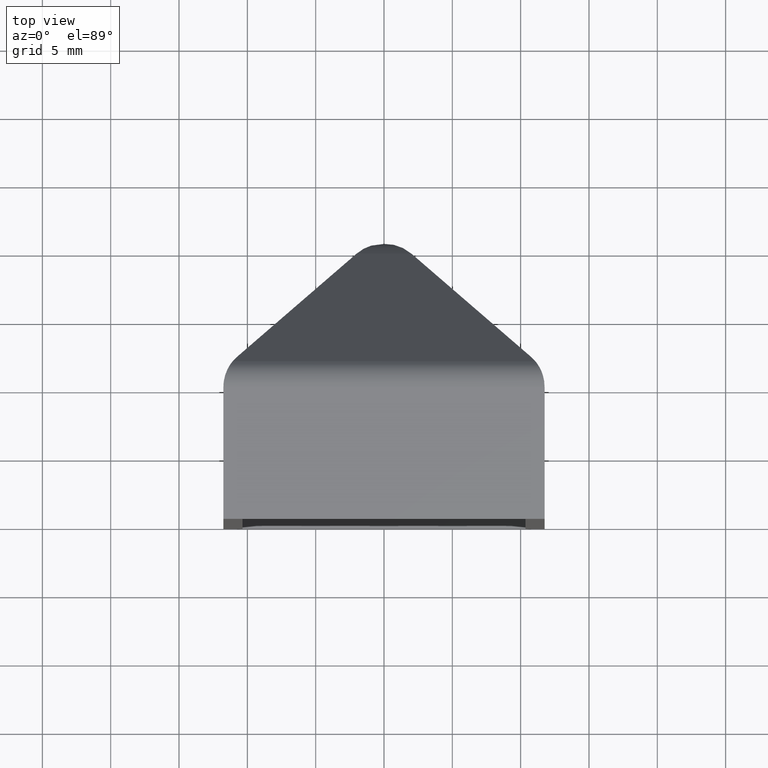
[diagram: clean part render]
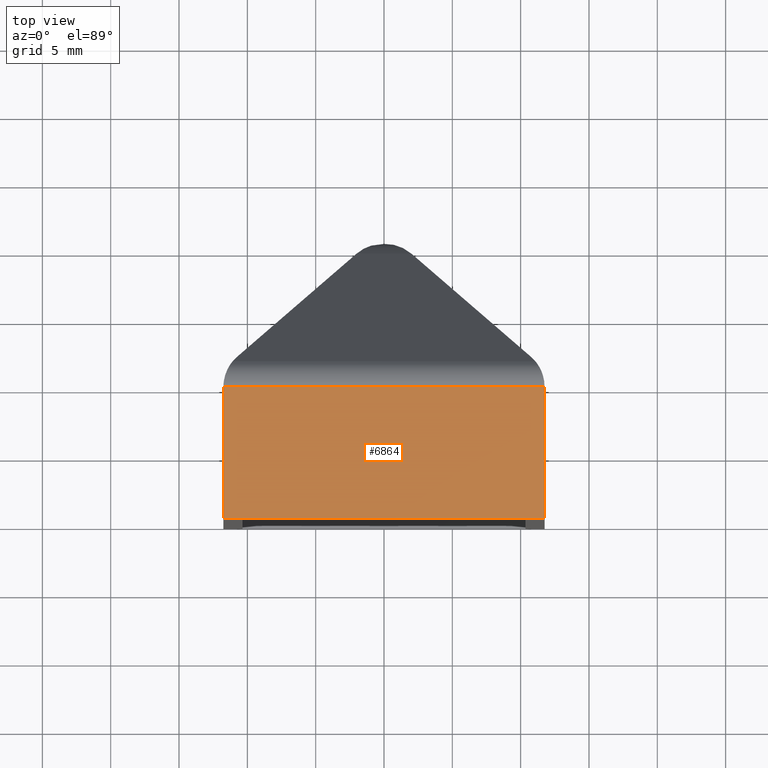
[diagram: same view with one face highlighted and labeled with its STEP entity id]
A machine part, top view. The second image highlights one B-rep face of the part: STEP entity #6864.
In plain terms, the highlighted planar face has unit normal (0, 0, 1).
Its self-contained STEP definition (entity closure, byte-faithful):
#2556 = ORIENTED_EDGE ( 'NONE', *, *, #7412, .F. ) ;
#2987 = DIRECTION ( 'NONE',  ( -1.795791595199839123E-16, -1.000000000000000000, -0.000000000000000000 ) ) ;
#3360 = PLANE ( 'NONE',  #14711 ) ;
#3447 = EDGE_CURVE ( 'NONE', #6919, #8811, #8641, .T. ) ;
#3636 = EDGE_CURVE ( 'NONE', #8811, #10624, #14117, .T. ) ;
#3995 = VECTOR ( 'NONE', #4301, 1000.000000000000000 ) ;
#4119 = VECTOR ( 'NONE', #15841, 1000.000000000000000 ) ;
#4301 = DIRECTION ( 'NONE',  ( 1.000000000000000000, 0.000000000000000000, 0.000000000000000000 ) ) ;
#4321 = LINE ( 'NONE', #14371, #4119 ) ;
#5331 = ORIENTED_EDGE ( 'NONE', *, *, #3447, .T. ) ;
#6864 = ADVANCED_FACE ( 'NONE', ( #8960 ), #3360, .T. ) ;
#6919 = VERTEX_POINT ( 'NONE', #7709 ) ;
#7412 = EDGE_CURVE ( 'NONE', #11928, #10624, #4321, .T. ) ;
#7709 = CARTESIAN_POINT ( 'NONE',  ( -11.74999999999998934, 3.076925082857724936E-15, 21.75000000000000000 ) ) ;
#8423 = DIRECTION ( 'NONE',  ( -2.334529073759791008E-15, 1.000000000000000000, -0.000000000000000000 ) ) ;
#8641 = LINE ( 'NONE', #15718, #3995 ) ;
#8810 = CARTESIAN_POINT ( 'NONE',  ( 11.74999999999999645, 9.659937604194901439, 21.75000000000000000 ) ) ;
#8811 = VERTEX_POINT ( 'NONE', #16689 ) ;
#8960 = FACE_OUTER_BOUND ( 'NONE', #10302, .T. ) ;
#9208 = CARTESIAN_POINT ( 'NONE',  ( -11.74999999999998757, 9.659937604194903216, 21.75000000000000000 ) ) ;
#9889 = CARTESIAN_POINT ( 'NONE',  ( -8.749999999999987566, 9.659937604194903216, 21.75000000000000000 ) ) ;
#10302 = EDGE_LOOP ( 'NONE', ( #2556, #11743, #5331, #16478 ) ) ;
#10624 = VERTEX_POINT ( 'NONE', #8810 ) ;
#11091 = DIRECTION ( 'NONE',  ( 1.000000000000000000, 0.000000000000000000, -0.000000000000000000 ) ) ;
#11166 = CARTESIAN_POINT ( 'NONE',  ( 11.74999999999998757, 9.659937604194903216, 21.75000000000000000 ) ) ;
#11203 = DIRECTION ( 'NONE',  ( 0.000000000000000000, 0.000000000000000000, 1.000000000000000000 ) ) ;
#11743 = ORIENTED_EDGE ( 'NONE', *, *, #12501, .T. ) ;
#11928 = VERTEX_POINT ( 'NONE', #9208 ) ;
#12501 = EDGE_CURVE ( 'NONE', #11928, #6919, #12934, .T. ) ;
#12934 = LINE ( 'NONE', #13515, #15552 ) ;
#13515 = CARTESIAN_POINT ( 'NONE',  ( -11.74999999999998934, 3.076925082857724936E-15, 21.75000000000000000 ) ) ;
#14117 = LINE ( 'NONE', #11166, #16526 ) ;
#14371 = CARTESIAN_POINT ( 'NONE',  ( -31.75000000000000000, 9.659937604194842820, 21.75000000000000000 ) ) ;
#14711 = AXIS2_PLACEMENT_3D ( 'NONE', #9889, #11203, #11091 ) ;
#15552 = VECTOR ( 'NONE', #2987, 1000.000000000000000 ) ;
#15718 = CARTESIAN_POINT ( 'NONE',  ( -11.74999999999998934, 3.076925082857724936E-15, 21.75000000000000000 ) ) ;
#15841 = DIRECTION ( 'NONE',  ( 1.000000000000000000, 1.369541201499284725E-15, -0.000000000000000000 ) ) ;
#16478 = ORIENTED_EDGE ( 'NONE', *, *, #3636, .T. ) ;
#16526 = VECTOR ( 'NONE', #8423, 1000.000000000000000 ) ;
#16689 = CARTESIAN_POINT ( 'NONE',  ( 11.75000000000001066, 3.076925082857724936E-15, 21.75000000000000000 ) ) ;